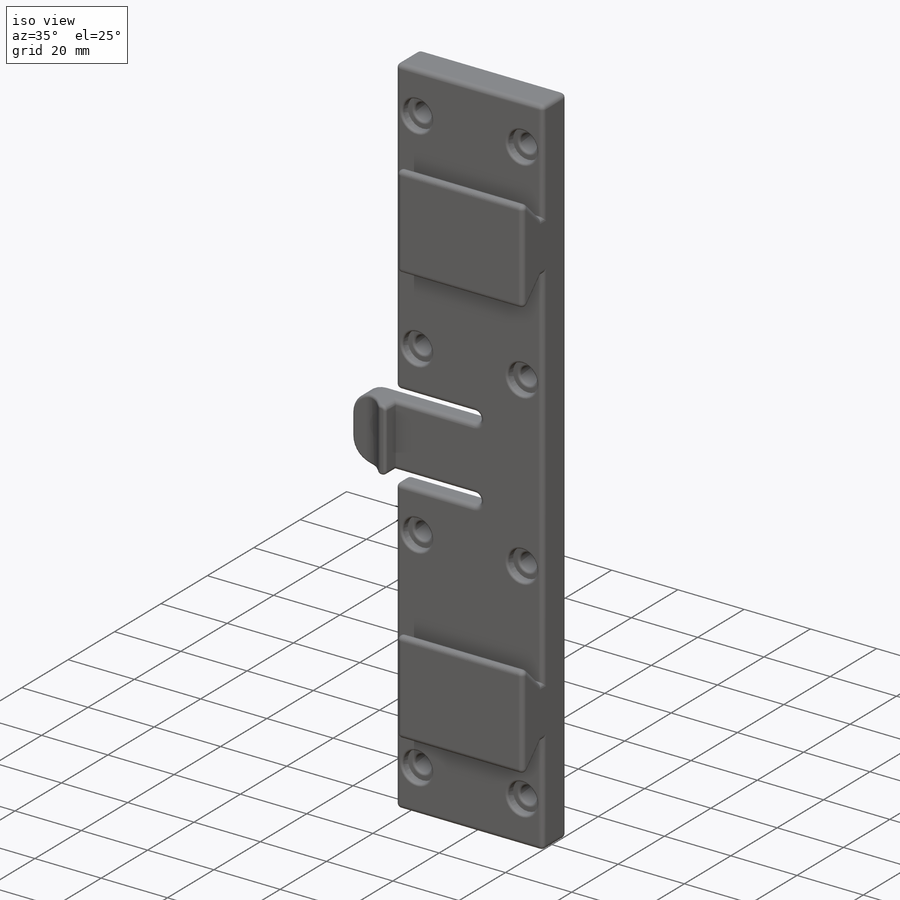
[diagram: iso view]
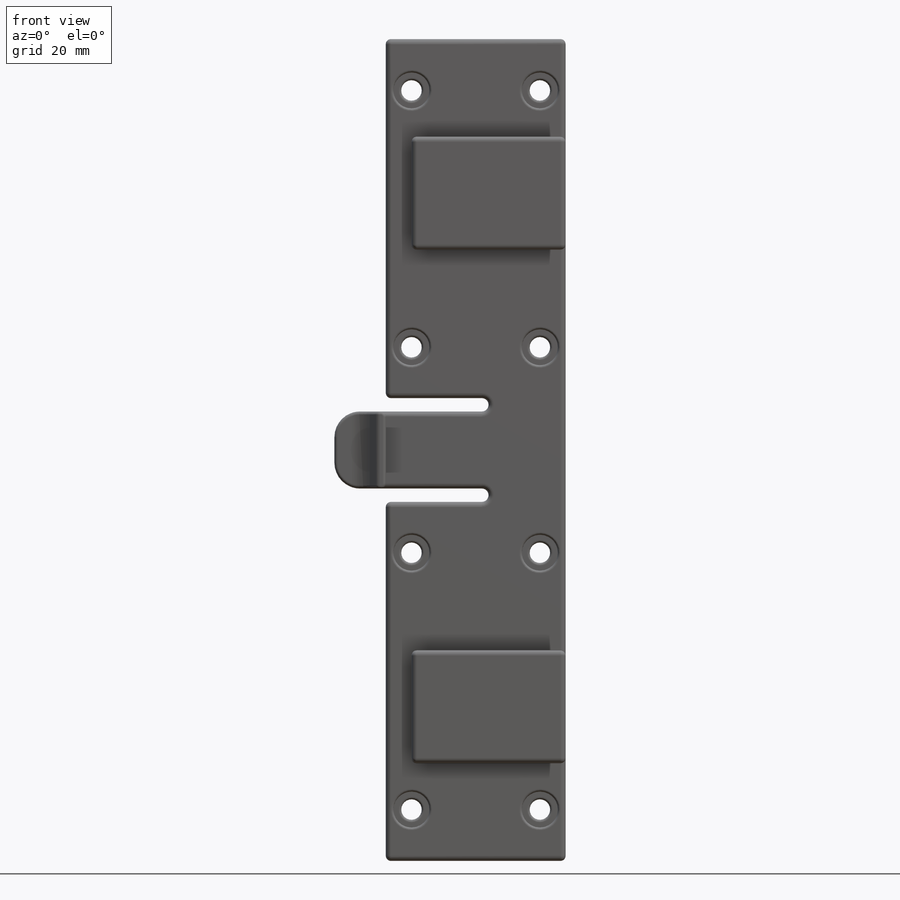
[diagram: front view]
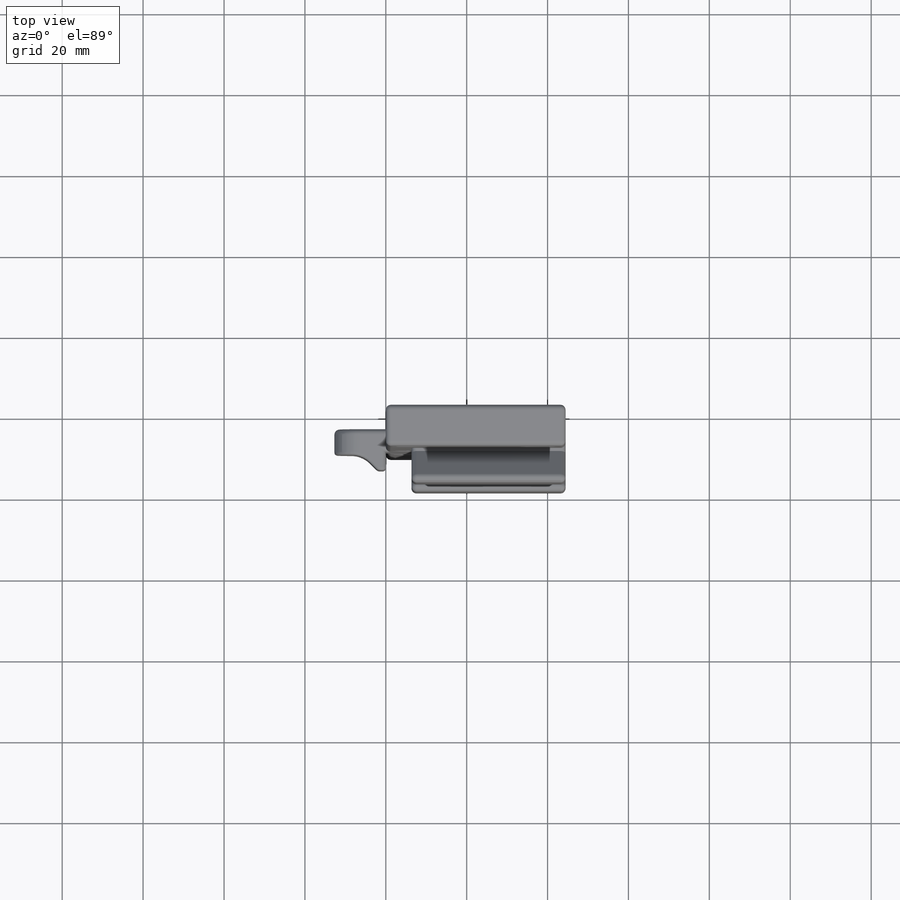
[diagram: top view]
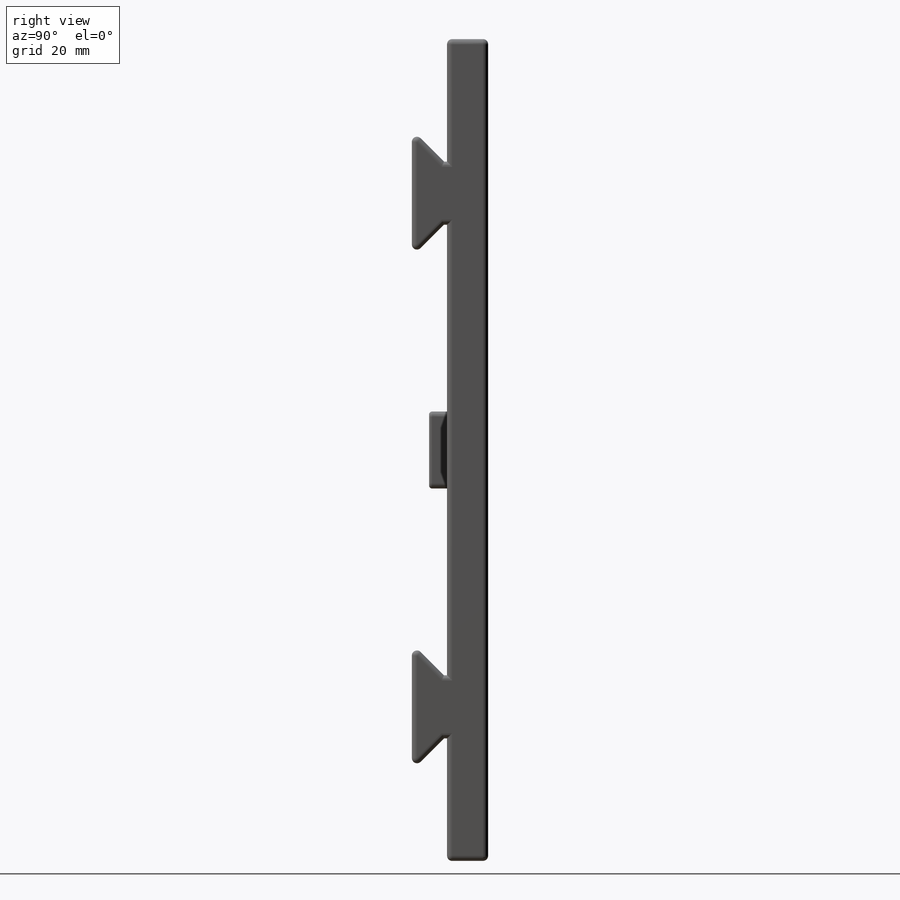
[diagram: right view]
SOLIDWORKS PART (.sldprt)
format: sldprt  version: not decoded by parser v0  size: 754,176 bytes
history: native  units: mm
features: sketch x11, cut_extrude x7, fillet x7, extrude x4, material x1 (+15 scaffold rows collapsed)
feature tree (45):
  scaffold x15  (default folders/planes/origin — collapsed)
  material  "Material <not specified>"
  sketch  "Sketch1"  dims[D1=203.2mm D2=44.45mm]
  extrude  "Boss-Extrude1"  Depth=10.16mm
  sketch  "Sketch2"  dims[c1.D1=0.762mm c1.D2=~27.661388mm c2.D2=45.0deg c2.D3=~24.828353mm c3.D3=45.0deg c3.D4=31.496mm c3.D5=7.9375mm c3.D6=63.5mm]
  extrude  "Boss-Extrude2"  Depth=38.1mm
  sketch  "Sketch3"  dims[c1.D2=1.778mm c1.D3=1.905mm c1.D6=5.588mm c1.D7=5.588mm c2.D6=5.588mm c2.D1=11.43mm c2.D4=30.861mm c2.D5=3.81mm c3.D4=3.81mm c3.D5=3.81mm]
  cut_extrude  "Cut-Extrude1"  [1 undecoded]
  sketch  "Sketch4"  dims[D1=6.35mm]
  extrude  "Boss-Extrude3"  Depth=2.54mm
  sketch  "Sketch5"  dims[D1=3.81mm D2=4.445mm]
  cut_extrude  "Cut-Extrude2"  [1 undecoded]
  sketch  "Sketch7"  dims[D1=19.05mm D2=4.445mm]
  extrude  "Boss-Extrude4"  Depth=12.7mm
  sketch  "Sketch8"  dims[D1=3.302mm D2=25.4mm]
  cut_extrude  "Cut-Extrude3"  [1 undecoded]
  sketch  "Sketch9"  dims[c1.D1=~4.940526mm c2.D1=45.0deg c2.D2=3.81mm]
  cut_extrude  "Cut-Extrude4"  [1 undecoded]
  fillet  "Fillet5"  Radius=6.35mm
  fillet  "Fillet6"  Radius=6.35mm
  fillet  "Fillet3"  Radius=1.27mm
  fillet  "Fillet9"  Radius=0.762mm
  sketch  "Sketch14"  dims[D1=31.75mm D2=12.7mm]
  cut_extrude  "Cut-Extrude5"  Depth=4.445mm
  fillet  "Fillet10"  Radius=1.27mm
  sketch  "Sketch16"  dims[D5=5.0546mm D1=6.35mm D2=6.35mm D3=12.7mm D4=12.7mm D6=63.5mm D7=63.5mm D8=76.2mm]
  cut_extrude  "Cut-Extrude6"  [1 undecoded]
  fillet  "Fillet12"  Radius=0.635mm
  sketch  "Sketch17"  dims[D1=8.89mm]
  cut_extrude  "Cut-Extrude7"  Depth=2.54mm
  fillet  "Fillet13"  Radius=0.635mm
decode coverage: 24 of 29 modeling features carry decoded parameters
note: ~ marks probable driven/reference dimensions
note: 5 parameter values undecoded
summary: no parameter record found for 5 features
note: suppression state not decoded; provenance and decode notes live in map.json
